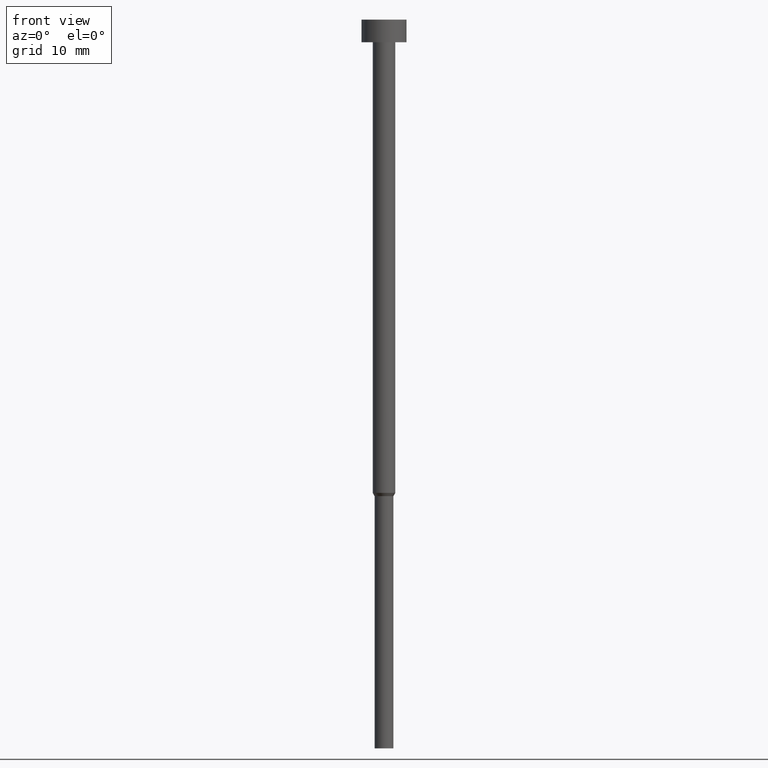
[diagram: clean part render]
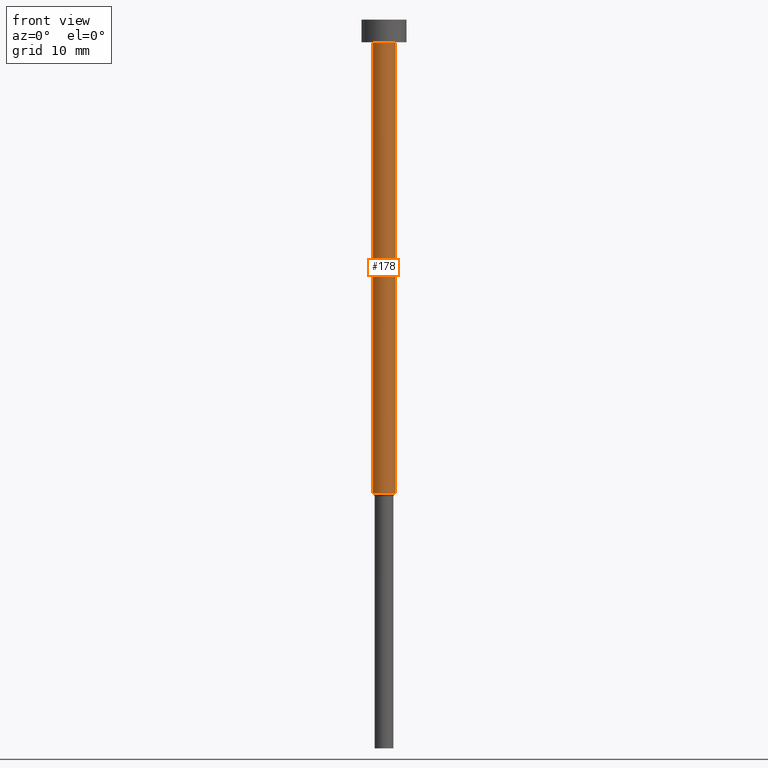
[diagram: same view with one face highlighted and labeled with its STEP entity id]
A machine part, front view. The second image highlights one B-rep face of the part: STEP entity #178.
In plain terms, the highlighted cylindrical surface (edge-blend (fillet) strip) has radius 1.5 mm, axis along (-0, -0, 1).
Its self-contained STEP definition (entity closure, byte-faithful):
#5 = CARTESIAN_POINT ( 'NONE',  ( -1.500000000000000000, 1.836970198721029934E-16, -3.000000000000000444 ) ) ;
#21 = EDGE_CURVE ( 'NONE', #190, #239, #353, .T. ) ;
#22 = CARTESIAN_POINT ( 'NONE',  ( 1.500000000000000000, 0.000000000000000000, -63.00000000000000000 ) ) ;
#30 = CARTESIAN_POINT ( 'NONE',  ( 0.000000000000000000, 0.000000000000000000, -63.00000000000000000 ) ) ;
#49 = DIRECTION ( 'NONE',  ( -0.000000000000000000, -0.000000000000000000, 1.000000000000000000 ) ) ;
#63 = EDGE_LOOP ( 'NONE', ( #260, #186, #193, #295 ) ) ;
#64 = AXIS2_PLACEMENT_3D ( 'NONE', #30, #84, #336 ) ;
#72 = DIRECTION ( 'NONE',  ( -0.000000000000000000, -0.000000000000000000, 1.000000000000000000 ) ) ;
#77 = CARTESIAN_POINT ( 'NONE',  ( -1.500000000000000000, 1.836970198721029934E-16, 0.000000000000000000 ) ) ;
#84 = DIRECTION ( 'NONE',  ( -0.000000000000000000, -0.000000000000000000, 1.000000000000000000 ) ) ;
#89 = CIRCLE ( 'NONE', #151, 1.500000000000000000 ) ;
#93 = EDGE_CURVE ( 'NONE', #133, #132, #171, .T. ) ;
#95 = CARTESIAN_POINT ( 'NONE',  ( 0.000000000000000000, 0.000000000000000000, 0.000000000000000000 ) ) ;
#107 = DIRECTION ( 'NONE',  ( 1.000000000000000000, 0.000000000000000000, 0.000000000000000000 ) ) ;
#125 = VECTOR ( 'NONE', #326, 1000.000000000000000 ) ;
#128 = DIRECTION ( 'NONE',  ( 1.000000000000000000, 0.000000000000000000, 0.000000000000000000 ) ) ;
#132 = VERTEX_POINT ( 'NONE', #331 ) ;
#133 = VERTEX_POINT ( 'NONE', #22 ) ;
#151 = AXIS2_PLACEMENT_3D ( 'NONE', #302, #166, #107 ) ;
#166 = DIRECTION ( 'NONE',  ( -0.000000000000000000, -0.000000000000000000, 1.000000000000000000 ) ) ;
#170 = CIRCLE ( 'NONE', #64, 1.500000000000000000 ) ;
#171 = LINE ( 'NONE', #252, #221 ) ;
#178 = ADVANCED_FACE ( 'NONE', ( #181 ), #236, .T. ) ;
#181 = FACE_OUTER_BOUND ( 'NONE', #63, .T. ) ;
#186 = ORIENTED_EDGE ( 'NONE', *, *, #258, .T. ) ;
#190 = VERTEX_POINT ( 'NONE', #264 ) ;
#193 = ORIENTED_EDGE ( 'NONE', *, *, #93, .T. ) ;
#221 = VECTOR ( 'NONE', #49, 1000.000000000000000 ) ;
#236 = CYLINDRICAL_SURFACE ( 'NONE', #293, 1.500000000000000000 ) ;
#239 = VERTEX_POINT ( 'NONE', #5 ) ;
#240 = EDGE_CURVE ( 'NONE', #239, #132, #89, .T. ) ;
#252 = CARTESIAN_POINT ( 'NONE',  ( 1.500000000000000000, 0.000000000000000000, 0.000000000000000000 ) ) ;
#258 = EDGE_CURVE ( 'NONE', #190, #133, #170, .T. ) ;
#260 = ORIENTED_EDGE ( 'NONE', *, *, #21, .F. ) ;
#264 = CARTESIAN_POINT ( 'NONE',  ( -1.500000000000000000, 1.836970198721029934E-16, -63.00000000000000000 ) ) ;
#293 = AXIS2_PLACEMENT_3D ( 'NONE', #95, #72, #128 ) ;
#295 = ORIENTED_EDGE ( 'NONE', *, *, #240, .F. ) ;
#302 = CARTESIAN_POINT ( 'NONE',  ( 0.000000000000000000, 0.000000000000000000, -3.000000000000000444 ) ) ;
#326 = DIRECTION ( 'NONE',  ( -0.000000000000000000, -0.000000000000000000, 1.000000000000000000 ) ) ;
#331 = CARTESIAN_POINT ( 'NONE',  ( 1.500000000000000000, 0.000000000000000000, -3.000000000000000444 ) ) ;
#336 = DIRECTION ( 'NONE',  ( 1.000000000000000000, 0.000000000000000000, 0.000000000000000000 ) ) ;
#353 = LINE ( 'NONE', #77, #125 ) ;